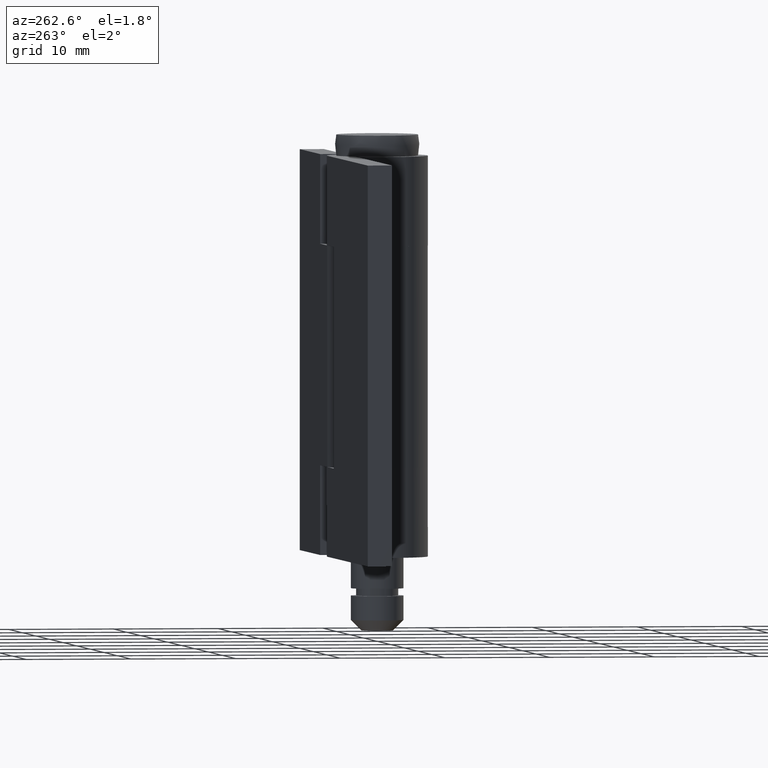
[diagram: clean part render]
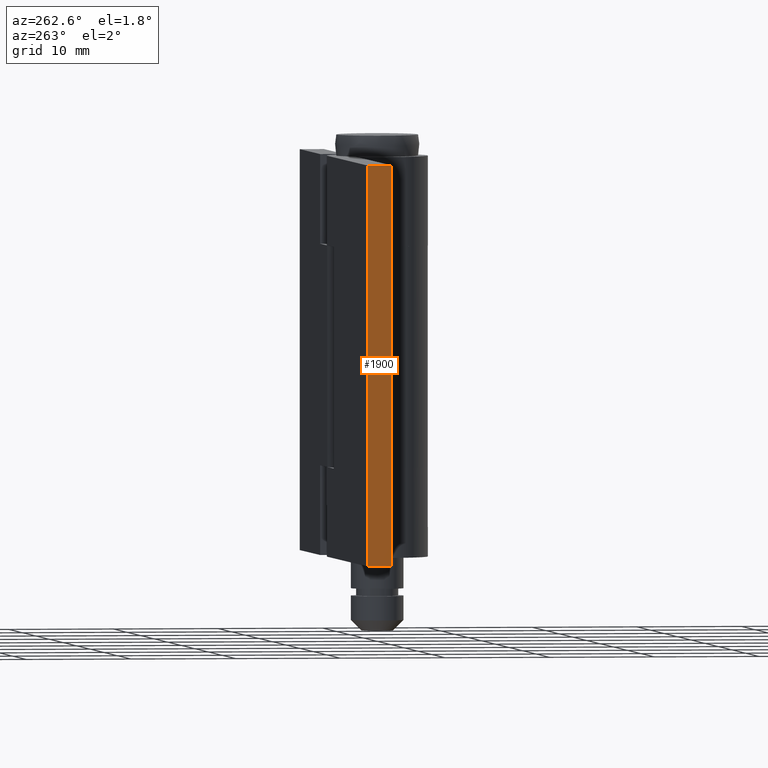
[diagram: same view with one face highlighted and labeled with its STEP entity id]
A machine part, auxiliary view. The second image highlights one B-rep face of the part: STEP entity #1900.
In plain terms, the highlighted face is a freeform B-spline surface patch.
Its self-contained STEP definition (entity closure, byte-faithful):
#1622=CARTESIAN_POINT('',(-30.0,2.500000000000000,0.0));
#1623=VERTEX_POINT('',#1622);
#1629=CARTESIAN_POINT('',(-30.0,4.799999000000000,0.0));
#1630=VERTEX_POINT('',#1629);
#1631=CARTESIAN_POINT('',(-30.0,2.500000000000000,0.0));
#1632=CARTESIAN_POINT('',(-30.0,4.799999000000000,0.0));
#1633=QUASI_UNIFORM_CURVE('',1,(#1631,#1632),.UNSPECIFIED.,.F.,.U.);
#1634=EDGE_CURVE('',#1623,#1630,#1633,.T.);
#1700=CARTESIAN_POINT('',(-30.0,2.500000000000000,38.0));
#1701=VERTEX_POINT('',#1700);
#1756=CARTESIAN_POINT('',(-30.0,4.799999000000000,38.0));
#1757=VERTEX_POINT('',#1756);
#1763=CARTESIAN_POINT('',(-30.0,2.500000000000000,38.0));
#1764=CARTESIAN_POINT('',(-30.0,4.799999000000000,38.0));
#1765=QUASI_UNIFORM_CURVE('',1,(#1763,#1764),.UNSPECIFIED.,.F.,.U.);
#1766=EDGE_CURVE('',#1701,#1757,#1765,.T.);
#1875=CARTESIAN_POINT('',(-30.0,4.799999000000000,38.0));
#1876=CARTESIAN_POINT('',(-30.0,4.799999000000000,0.0));
#1877=QUASI_UNIFORM_CURVE('',1,(#1875,#1876),.UNSPECIFIED.,.F.,.U.);
#1878=EDGE_CURVE('',#1757,#1630,#1877,.T.);
#1885=CARTESIAN_POINT('',(-30.0,2.385115046190632,-1.898099926348628));
#1886=CARTESIAN_POINT('',(-30.0,2.385115046190632,39.898100945588048));
#1887=CARTESIAN_POINT('',(-30.0,4.914884180008896,-1.898099926348628));
#1888=CARTESIAN_POINT('',(-30.0,4.914884180008896,39.898100945588048));
#1889=B_SPLINE_SURFACE_WITH_KNOTS('',1,1,((#1885,#1887),(#1886,#1888)),.UNSPECIFIED.,.F.,.F.,.U.,(2,2),(2,2),(0.0,41.796200871936684),(0.0,2.529769133818264),.UNSPECIFIED.);
#1890=ORIENTED_EDGE('',*,*,#1634,.F.);
#1891=CARTESIAN_POINT('',(-30.0,2.500000000000000,38.0));
#1892=CARTESIAN_POINT('',(-30.0,2.500000000000000,0.0));
#1893=QUASI_UNIFORM_CURVE('',1,(#1891,#1892),.UNSPECIFIED.,.F.,.U.);
#1894=EDGE_CURVE('',#1701,#1623,#1893,.T.);
#1895=ORIENTED_EDGE('',*,*,#1894,.F.);
#1896=ORIENTED_EDGE('',*,*,#1766,.T.);
#1897=ORIENTED_EDGE('',*,*,#1878,.T.);
#1898=EDGE_LOOP('',(#1890,#1895,#1896,#1897));
#1899=FACE_OUTER_BOUND('',#1898,.T.);
#1900=ADVANCED_FACE('',(#1899),#1889,.T.);